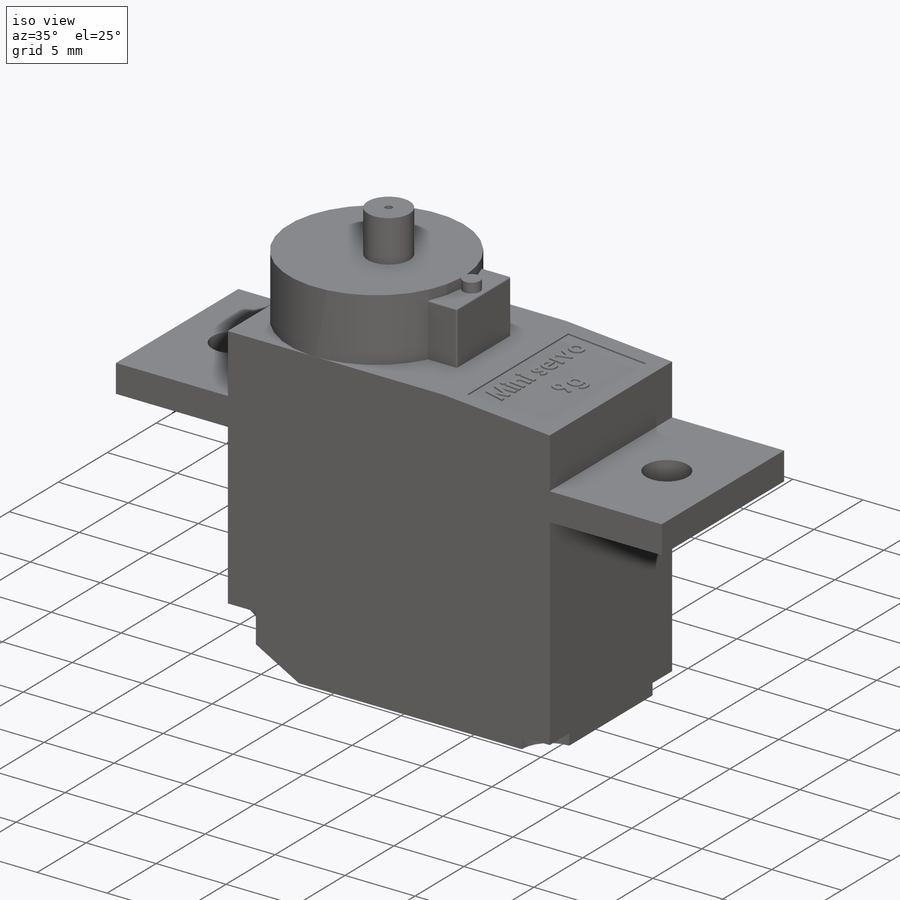
[diagram: iso view]
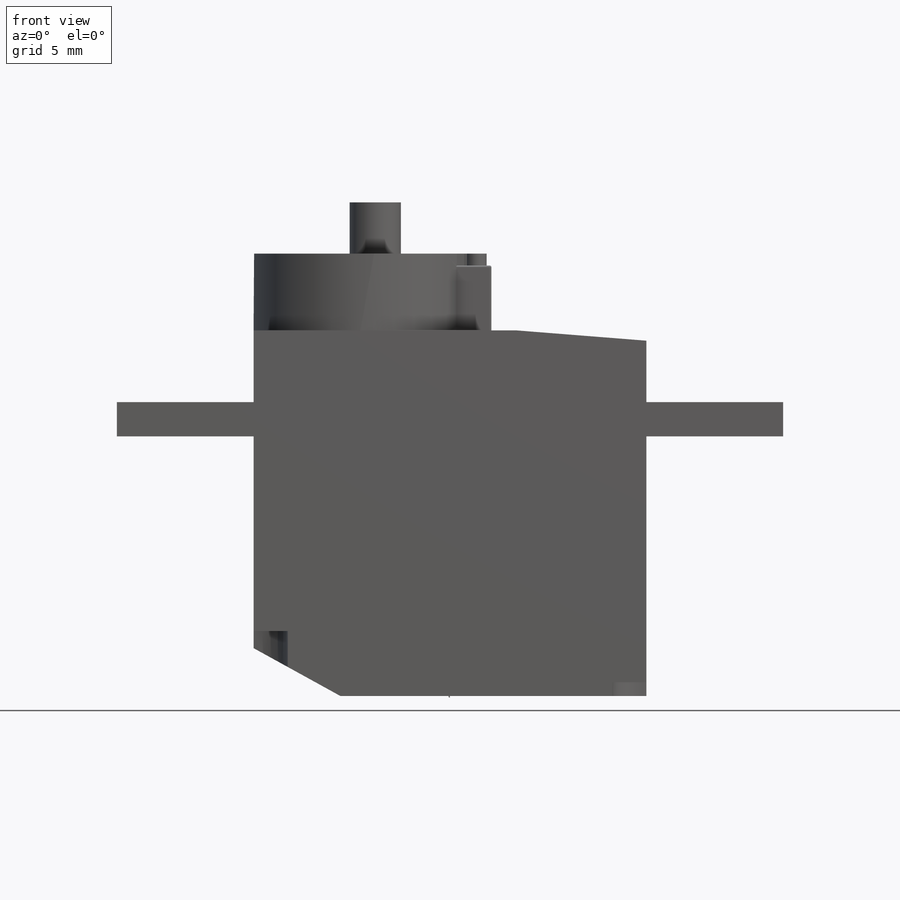
[diagram: front view]
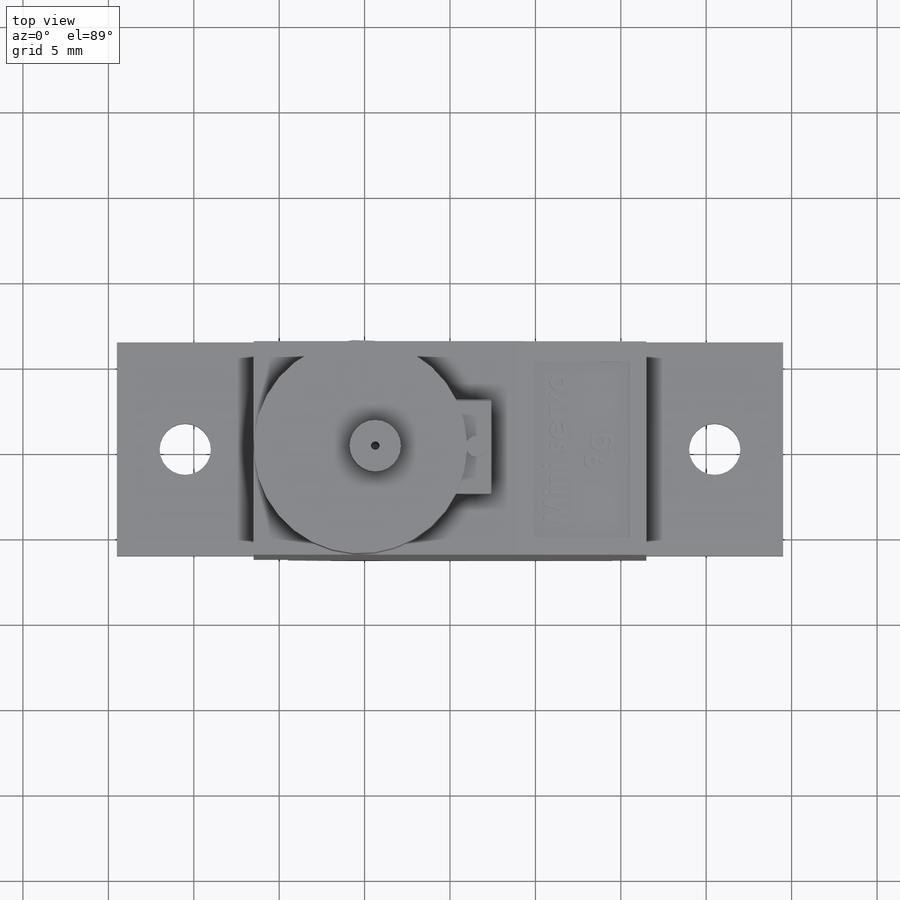
[diagram: top view]
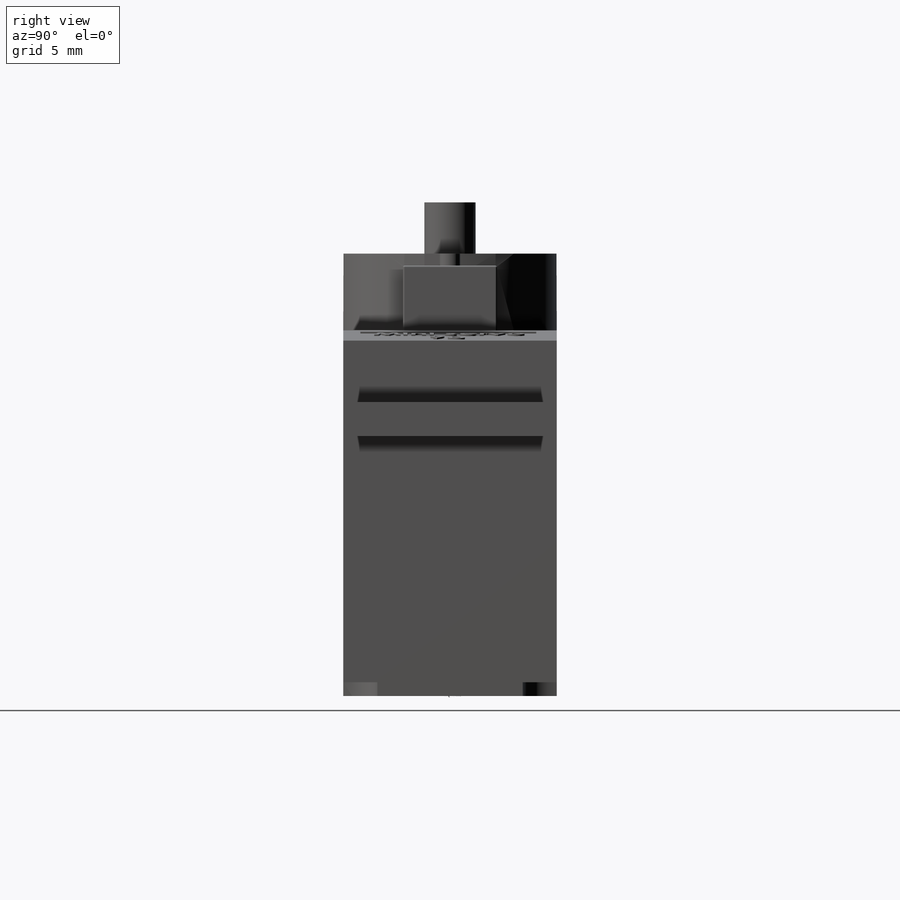
[diagram: right view]
SOLIDWORKS PART (.sldprt)
format: sldprt  version: not decoded by parser v0  size: 696,832 bytes
history: native  units: mm
features: sketch x16, extrude x8, cut_extrude x6, material x1, fillet x1, hole x1, mirror x1 (+12 scaffold rows collapsed)
feature tree (46):
  scaffold x12  (default folders/planes/origin — collapsed)
  material  "ABS"
  sketch  "Sketch1"  dims[D1=12.5mm D2=23.0mm]
  extrude  "Boss-Extrude1"  Depth=15.2mm
  sketch  "Sketch2"  dims[D1=8.0mm D2=12.5mm D3=12.5mm]
  extrude  "Boss-Extrude2"  Depth=2mm
  sketch  "Sketch3"  dims[D1=23.0mm]
  extrude  "Boss-Extrude3"  Depth=4.2mm
  sketch  "Sketch4"  dims[D1=3.6mm D2=7.6mm]
  cut_extrude  "Cut-Extrude1"  [1 undecoded]
  sketch  "Sketch5"  dims[D1=~12.500001mm]
  extrude  "Boss-Extrude4"  Depth=4.5mm
  sketch  "Sketch6"  dims[D1=1.5mm D2=5.5mm]
  extrude  "Boss-Extrude5"  Depth=3.8mm
  sketch  "Sketch7"
  extrude  "Boss-Extrude7"  [1 undecoded]
  sketch  "Sketch8"  dims[D1=~1.500181mm]
  extrude  "Boss-Extrude8"  Depth=3mm
  sketch  "Sketch9"  dims[D1=5.8mm D2=2.8mm D3=~5.07937mm]
  cut_extrude  "Cut-Extrude2"  [1 undecoded]
  sketch  "Sketch13"  dims[D1=0.5mm]
  cut_extrude  "Cut-Extrude3"  [1 undecoded]
  sketch  "Sketch15"  dims[D1=2.0mm]
  cut_extrude  "Cut-Extrude12"  Depth=0.8mm
  sketch  "Sketch16"  dims[D1=2.0mm]
  cut_extrude  "Cut-Extrude13"  Depth=3.8mm
  sketch  "Sketch17"  dims[D1=1.0mm D2=1.0mm D3=1.0mm D4=10.3mm]
  cut_extrude  "Cut-Extrude14"  Depth=0.1mm
  sketch  "Sketch19"
  extrude  "Boss-Extrude9"  [1 undecoded]
  fillet  "Fillet3"  Radius=0.1mm
  hole  "Ø3.0 (3) Diameter Hole1"  Diameter=3mm Depth=17.2mm
  sketch  "Sketch23"  dims[D1=4.0mm D2=12.5mm]
  sketch  "Sketch20"  dims[hole-wizard template sketch: 60 standard entries collapsed; hole parameters kept: c18.Thru Hole Depth=17.2mm]
  mirror  "Mirror1"
decode coverage: 25 of 33 modeling features carry decoded parameters
note: ~ marks probable driven/reference dimensions
note: 5 parameter values undecoded
summary: no parameter record found for 5 features
note: suppression state not decoded; provenance and decode notes live in map.json
